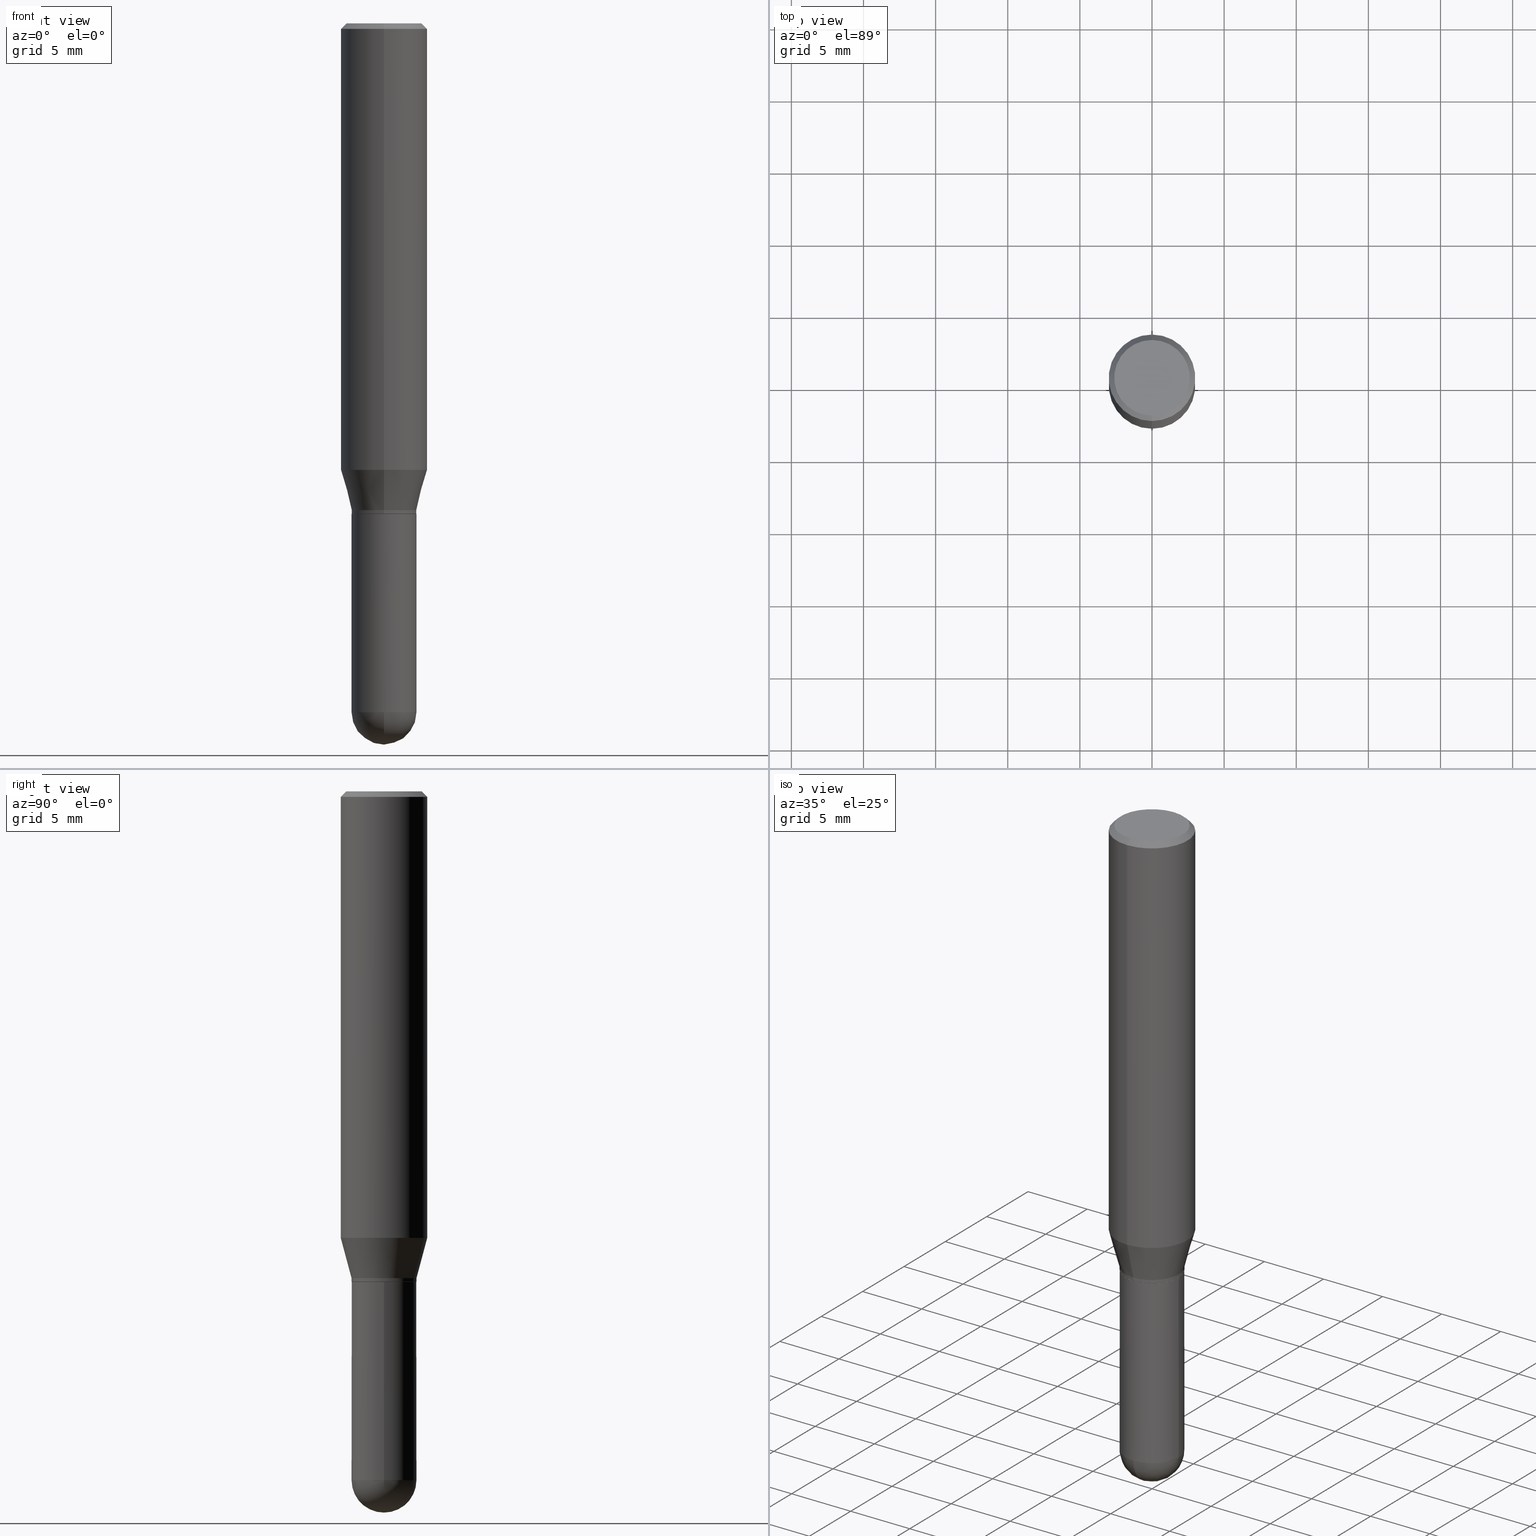
[diagram: canonical four-view strip — front | top / right | iso, engineering-drawing reading convention]
A machine part, canonical four-view strip (front | top / right | iso — engineering-drawing reading convention). The complete STEP part file that produces these views, byte-faithful:
ISO-10303-21;
HEADER;
FILE_DESCRIPTION (( 'STEP AP203' ),
    '1' );
FILE_NAME ('48614.STEP',
    '2024-03-08T13:10:58',
    ( '' ),
    ( '' ),
    'SwSTEP 2.0',
    'SolidWorks 2023',
    '' );
FILE_SCHEMA (( 'CONFIG_CONTROL_DESIGN' ));
ENDSEC;

DATA;
#1 = ADVANCED_FACE ( 'NONE', ( #321 ), #201, .F. ) ;
#2 = CARTESIAN_POINT ( 'NONE',  ( 6.277645070440807445E-16, 0.08809999999999532094, -1.338600000000000234 ) ) ;
#3 = CIRCLE ( 'NONE', #434, 0.08859999999999991493 ) ;
#4 = ORIENTED_EDGE ( 'NONE', *, *, #268, .F. ) ;
#5 = DIRECTION ( 'NONE',  ( -2.445312692479667883E-29, 3.491704902554816982E-15, 1.000000000000000000 ) ) ;
#6 = ORIENTED_EDGE ( 'NONE', *, *, #196, .T. ) ;
#7 = ORIENTED_EDGE ( 'NONE', *, *, #63, .T. ) ;
#8 = CARTESIAN_POINT ( 'NONE',  ( 8.391509709327082724E-16, 0.1180999999999999411, -0.01500000000000055456 ) ) ;
#9 = VERTEX_POINT ( 'NONE', #41 ) ;
#10 = DIRECTION ( 'NONE',  ( -4.851104656540965064E-15, -0.7071067811865501263, -0.7071067811865449082 ) ) ;
#11 = AXIS2_PLACEMENT_3D ( 'NONE', #284, #84, #128 ) ;
#12 = CARTESIAN_POINT ( 'NONE',  ( 2.979624522571035712E-29, -4.254658140543858788E-15, -1.218504501176718158 ) ) ;
#13 = DIRECTION ( 'NONE',  ( -2.445312692479667883E-29, 3.491704902554816982E-15, 1.000000000000000000 ) ) ;
#14 = ADVANCED_FACE ( 'NONE', ( #78 ), #402, .T. ) ;
#15 = DIRECTION ( 'NONE',  ( 1.000000000000000000, -6.982962677686270655E-15, 0.000000000000000000 ) ) ;
#16 = ORIENTED_EDGE ( 'NONE', *, *, #466, .T. ) ;
#17 = VECTOR ( 'NONE', #215, 39.37007874015747433 ) ;
#18 = APPROVAL_PERSON_ORGANIZATION ( #427, #241, #375 ) ;
#19 = MECHANICAL_CONTEXT ( 'NONE', #440, 'mechanical' ) ;
#20 = DIRECTION ( 'NONE',  ( -2.445468806185136597E-29, 3.491481338843145583E-15, 1.000000000000000000 ) ) ;
#21 = ADVANCED_FACE ( 'NONE', ( #119 ), #158, .T. ) ;
#22 = DIRECTION ( 'NONE',  ( -6.982962677686264344E-15, -1.000000000000000000, 3.083349879982241481E-15 ) ) ;
#23 = ORIENTED_EDGE ( 'NONE', *, *, #63, .F. ) ;
#24 = CARTESIAN_POINT ( 'NONE',  ( 3.667969038719537049E-31, -5.237557353832276132E-17, -0.01500000000000014343 ) ) ;
#25 = CALENDAR_DATE ( 2024, 8, 3 ) ;
#26 = CIRCLE ( 'NONE', #11, 0.1030999999999999833 ) ;
#27 = DIRECTION ( 'NONE',  ( -6.982962677686265133E-15, -1.000000000000000000, 3.100849027995758518E-15 ) ) ;
#28 = APPROVAL_STATUS ( 'not_yet_approved' ) ;
#29 = EDGE_LOOP ( 'NONE', ( #132, #7, #329, #457 ) ) ;
#30 = DIRECTION ( 'NONE',  ( -7.105427357600999492E-15, -1.000000000000000000, 0.000000000000000000 ) ) ;
#31 = PERSON_AND_ORGANIZATION ( #195, #361 ) ;
#32 = EDGE_CURVE ( 'NONE', #175, #335, #356, .T. ) ;
#33 = DIRECTION ( 'NONE',  ( 6.982962677686265133E-15, 1.000000000000000000, -3.083349879982239114E-15 ) ) ;
#34 = AXIS2_PLACEMENT_3D ( 'NONE', #115, #271, #40 ) ;
#35 = AXIS2_PLACEMENT_3D ( 'NONE', #326, #54, #365 ) ;
#36 = CARTESIAN_POINT ( 'NONE',  ( 6.186904932430488054E-16, 0.08859999999999342013, -1.879900000000000126 ) ) ;
#37 = PRODUCT_DEFINITION ( 'UNKNOWN', '', #289, #378 ) ;
#38 = DIRECTION ( 'NONE',  ( -2.445312692479667883E-29, 3.491704902554816982E-15, 1.000000000000000000 ) ) ;
#39 = EDGE_LOOP ( 'NONE', ( #315, #364, #319, #23 ) ) ;
#40 = DIRECTION ( 'NONE',  ( -6.982962677686265922E-15, -1.000000000000000000, 3.469747663417777397E-15 ) ) ;
#41 = CARTESIAN_POINT ( 'NONE',  ( 6.295408638834805036E-16, 0.08859999999999519649, -1.338100000000000511 ) ) ;
#42 = CIRCLE ( 'NONE', #239, 0.08859999999999998432 ) ;
#43 = VERTEX_POINT ( 'NONE', #2 ) ;
#44 = DIRECTION ( 'NONE',  ( -6.982962677686264344E-15, -1.000000000000000000, 3.083349879982241481E-15 ) ) ;
#45 = ADVANCED_FACE ( 'NONE', ( #318 ), #217, .T. ) ;
#46 = CARTESIAN_POINT ( 'NONE',  ( 4.597236808747438107E-29, -6.563635768891228653E-15, -1.879899999999999904 ) ) ;
#47 = FACE_OUTER_BOUND ( 'NONE', #277, .T. ) ;
#48 = CC_DESIGN_APPROVAL ( #168, ( #37 ) ) ;
#49 = EDGE_CURVE ( 'NONE', #507, #98, #156, .T. ) ;
#50 = LINE ( 'NONE', #325, #314 ) ;
#51 = ORIENTED_EDGE ( 'NONE', *, *, #412, .T. ) ;
#52 = DIRECTION ( 'NONE',  ( -4.937700262164631661E-15, -0.7071067811865571207, 0.7071067811865379138 ) ) ;
#53 = EDGE_LOOP ( 'NONE', ( #353, #116 ) ) ;
#54 = DIRECTION ( 'NONE',  ( -2.445312692479667883E-29, 3.491704902554816982E-15, 1.000000000000000000 ) ) ;
#55 = ORIENTED_EDGE ( 'NONE', *, *, #508, .F. ) ;
#56 = AXIS2_PLACEMENT_3D ( 'NONE', #282, #38, #442 ) ;
#57 = APPROVAL_ROLE ( '' ) ;
#58 = CARTESIAN_POINT ( 'NONE',  ( 3.272072913807044359E-29, -4.672250330108600985E-15, -1.338100000000000067 ) ) ;
#59 = APPROVAL_DATE_TIME ( #183, #294 ) ;
#60 = CARTESIAN_POINT ( 'NONE',  ( 8.246878922347483612E-16, 0.1180999999999999411, -0.01500000000000055456 ) ) ;
#61 = CARTESIAN_POINT ( 'NONE',  ( -7.587710785535310407E-16, -0.1030999999999999833, 2.171883166771725854E-16 ) ) ;
#62 = COORDINATED_UNIVERSAL_TIME_OFFSET ( 5, 0, .BEHIND. ) ;
#63 = EDGE_CURVE ( 'NONE', #452, #487, #443, .T. ) ;
#64 = MANIFOLD_SOLID_BREP ( 'Body-Move/Copy2[2]', #153 ) ;
#65 = DIRECTION ( 'NONE',  ( -2.445312692479667883E-29, 3.491704902554816982E-15, 1.000000000000000000 ) ) ;
#66 = VERTEX_POINT ( 'NONE', #432 ) ;
#67 = VECTOR ( 'NONE', #52, 39.37007874015748143 ) ;
#68 = CC_DESIGN_PERSON_AND_ORGANIZATION_ASSIGNMENT ( #31, #216, ( #289 ) ) ;
#69 = DIRECTION ( 'NONE',  ( -6.982962677686265922E-15, -1.000000000000000000, 3.491704902554816982E-15 ) ) ;
#70 = DATE_TIME_ROLE ( 'creation_date' ) ;
#71 = SPHERICAL_SURFACE ( 'NONE', #245, 0.08859999999999998432 ) ;
#72 = DIRECTION ( 'NONE',  ( -6.982962677686264344E-15, -1.000000000000000000, 3.083349879982241481E-15 ) ) ;
#73 = CC_DESIGN_DATE_AND_TIME_ASSIGNMENT ( #369, #106, ( #118 ) ) ;
#74 = CARTESIAN_POINT ( 'NONE',  ( 7.199434520694539070E-16, 0.1030999999999999833, -4.313980048415160526E-16 ) ) ;
#75 = APPROVAL_PERSON_ORGANIZATION ( #504, #294, #302 ) ;
#76 = ORIENTED_EDGE ( 'NONE', *, *, #343, .T. ) ;
#77 = DIRECTION ( 'NONE',  ( -2.445312692479667883E-29, 3.491704902554816982E-15, 1.000000000000000000 ) ) ;
#78 = FACE_OUTER_BOUND ( 'NONE', #391, .T. ) ;
#79 = ORIENTED_EDGE ( 'NONE', *, *, #111, .F. ) ;
#80 = ADVANCED_FACE ( 'NONE', ( #395 ), #308, .T. ) ;
#81 = CARTESIAN_POINT ( 'NONE',  ( 0.08859999999999998432, -6.186904932430030515E-16, 4.320292623355198064E-30 ) ) ;
#82 = CIRCLE ( 'NONE', #200, 0.08859999999999999820 ) ;
#83 = CARTESIAN_POINT ( 'NONE',  ( -6.151990119041272080E-16, -0.08810000000000467457, -1.338599999999999790 ) ) ;
#84 = DIRECTION ( 'NONE',  ( -2.445312692479667883E-29, 3.491704902554816982E-15, 1.000000000000000000 ) ) ;
#85 =( LENGTH_UNIT ( ) NAMED_UNIT ( * ) SI_UNIT ( $, .METRE. ) );
#86 = CARTESIAN_POINT ( 'NONE',  ( 0.000000000000000000, 0.000000000000000000, 0.000000000000000000 ) ) ;
#87 = AXIS2_PLACEMENT_3D ( 'NONE', #354, #470, #480 ) ;
#88 = ORIENTED_EDGE ( 'NONE', *, *, #347, .F. ) ;
#89 = AXIS2_PLACEMENT_3D ( 'NONE', #429, #224, #152 ) ;
#90 = CIRCLE ( 'NONE', #309, 0.08859999999999998432 ) ;
#91 = CARTESIAN_POINT ( 'NONE',  ( 4.597236808747438107E-29, -6.563635768891228653E-15, -1.879899999999999904 ) ) ;
#92 = ORIENTED_EDGE ( 'NONE', *, *, #390, .T. ) ;
#93 = DIRECTION ( 'NONE',  ( -6.982962677686264344E-15, -1.000000000000000000, 3.083349879982241481E-15 ) ) ;
#94 = ORIENTED_EDGE ( 'NONE', *, *, #114, .T. ) ;
#95 = CARTESIAN_POINT ( 'NONE',  ( -8.246878922347182859E-16, -0.1181000000000042710, -1.218504501176717714 ) ) ;
#96 = LENGTH_MEASURE_WITH_UNIT ( LENGTH_MEASURE( 0.02539999999999999897 ), #85 );
#97 = CARTESIAN_POINT ( 'NONE',  ( 0.08859999999999999820, -5.292387413418437689E-15, -1.338600000000000012 ) ) ;
#98 = VERTEX_POINT ( 'NONE', #234 ) ;
#99 = AXIS2_PLACEMENT_3D ( 'NONE', #86, #244, #399 ) ;
#100 = CIRCLE ( 'NONE', #192, 0.08859999999999991493 ) ;
#101 = DIRECTION ( 'NONE',  ( -1.000000000000000000, 7.105427357601001070E-15, -4.926315508542082329E-29 ) ) ;
#102 = FACE_OUTER_BOUND ( 'NONE', #413, .T. ) ;
#103 = CALENDAR_DATE ( 2024, 8, 3 ) ;
#104 = EDGE_CURVE ( 'NONE', #487, #439, #473, .T. ) ;
#105 = CARTESIAN_POINT ( 'NONE',  ( 8.391509709326781971E-16, 0.1180999999999999966, -4.123703489917239120E-16 ) ) ;
#106 = DATE_TIME_ROLE ( 'classification_date' ) ;
#107 = EDGE_LOOP ( 'NONE', ( #88, #220, #441, #55 ) ) ;
#108 = AXIS2_PLACEMENT_3D ( 'NONE', #58, #459, #22 ) ;
#109 = DIRECTION ( 'NONE',  ( -2.445312692479667883E-29, 3.491704902554816982E-15, 1.000000000000000000 ) ) ;
#110 = PERSON_AND_ORGANIZATION ( #195, #361 ) ;
#111 = EDGE_CURVE ( 'NONE', #312, #43, #384, .T. ) ;
#112 = ORIENTED_EDGE ( 'NONE', *, *, #379, .T. ) ;
#113 = DIRECTION ( 'NONE',  ( 6.982962677686265133E-15, 1.000000000000000000, 0.000000000000000000 ) ) ;
#114 = EDGE_CURVE ( 'NONE', #98, #66, #3, .T. ) ;
#115 = CARTESIAN_POINT ( 'NONE',  ( 2.979624522571035712E-29, -4.254658140543858788E-15, -1.218504501176718158 ) ) ;
#116 = ORIENTED_EDGE ( 'NONE', *, *, #347, .T. ) ;
#117 = CIRCLE ( 'NONE', #186, 0.08809999999999999776 ) ;
#118 = SECURITY_CLASSIFICATION ( '', '', #464 ) ;
#119 = FACE_OUTER_BOUND ( 'NONE', #189, .T. ) ;
#120 = CC_DESIGN_PERSON_AND_ORGANIZATION_ASSIGNMENT ( #456, #345, ( #289 ) ) ;
#121 = ORIENTED_EDGE ( 'NONE', *, *, #407, .F. ) ;
#122 = DIRECTION ( 'NONE',  ( 2.445312692479667602E-29, -3.491704902554816982E-15, -1.000000000000000000 ) ) ;
#123 = DIRECTION ( 'NONE',  ( -6.982962677686265133E-15, -1.000000000000000000, 3.100849027995758518E-15 ) ) ;
#124 = VERTEX_POINT ( 'NONE', #8 ) ;
#125 = AXIS2_PLACEMENT_3D ( 'NONE', #300, #141, #496 ) ;
#126 = CYLINDRICAL_SURFACE ( 'NONE', #170, 0.08859999999999998432 ) ;
#127 = EDGE_CURVE ( 'NONE', #43, #9, #446, .T. ) ;
#128 = DIRECTION ( 'NONE',  ( -6.982962677686265922E-15, -1.000000000000000000, 3.491704902554816587E-15 ) ) ;
#129 = ORIENTED_EDGE ( 'NONE', *, *, #151, .F. ) ;
#130 = CARTESIAN_POINT ( 'NONE',  ( 4.597236808747438107E-29, -6.563635768891228653E-15, -1.879899999999999904 ) ) ;
#131 = VECTOR ( 'NONE', #389, 39.37007874015748143 ) ;
#132 = ORIENTED_EDGE ( 'NONE', *, *, #394, .F. ) ;
#133 = LOCAL_TIME ( 8, 10, 58.00000000000000000, #149 ) ;
#134 = CYLINDRICAL_SURFACE ( 'NONE', #35, 0.08859999999999991493 ) ;
#135 = VERTEX_POINT ( 'NONE', #36 ) ;
#136 = APPROVAL_STATUS ( 'not_yet_approved' ) ;
#137 = EDGE_CURVE ( 'NONE', #66, #452, #193, .T. ) ;
#138 = CARTESIAN_POINT ( 'NONE',  ( 3.248842443228486773E-29, -4.639079133534330158E-15, -1.328600000000000225 ) ) ;
#139 = CALENDAR_DATE ( 2024, 8, 3 ) ;
#140 = EDGE_LOOP ( 'NONE', ( #166, #51, #491, #4 ) ) ;
#141 = DIRECTION ( 'NONE',  ( -2.445312692479667883E-29, 3.491704902554816982E-15, 1.000000000000000000 ) ) ;
#142 = CARTESIAN_POINT ( 'NONE',  ( 3.273504543959423913E-29, -4.673696920175434737E-15, -1.338600000000000012 ) ) ;
#143 = AXIS2_PLACEMENT_3D ( 'NONE', #138, #453, #93 ) ;
#144 = CARTESIAN_POINT ( 'NONE',  ( -6.186904932429700179E-16, -0.08860000000000461950, -1.338099999999999845 ) ) ;
#145 = LOCAL_TIME ( 8, 10, 58.00000000000000000, #339 ) ;
#146 = DIRECTION ( 'NONE',  ( 1.000000000000000000, -6.982962677686265922E-15, 4.876176775795935232E-29 ) ) ;
#147 = CC_DESIGN_PERSON_AND_ORGANIZATION_ASSIGNMENT ( #425, #494, ( #118 ) ) ;
#148 = CARTESIAN_POINT ( 'NONE',  ( 4.589660035425309027E-29, -6.574486139531674551E-15, -1.879900000000000126 ) ) ;
#149 = COORDINATED_UNIVERSAL_TIME_OFFSET ( 5, 0, .BEHIND. ) ;
#150 = ORIENTED_EDGE ( 'NONE', *, *, #333, .T. ) ;
#151 = EDGE_CURVE ( 'NONE', #303, #322, #444, .T. ) ;
#152 = DIRECTION ( 'NONE',  ( 6.982962677686265133E-15, 1.000000000000000000, -3.083349879982239114E-15 ) ) ;
#153 = CLOSED_SHELL ( 'NONE', ( #511, #21, #45, #436, #316, #203, #305, #14, #1, #423, #80, #236 ) ) ;
#154 = VECTOR ( 'NONE', #77, 39.37007874015748143 ) ;
#155 = FACE_OUTER_BOUND ( 'NONE', #320, .T. ) ;
#156 = LINE ( 'NONE', #279, #381 ) ;
#157 = DIRECTION ( 'NONE',  ( -6.982962677686265133E-15, -1.000000000000000000, 3.100849027995758518E-15 ) ) ;
#158 = CONICAL_SURFACE ( 'NONE', #286, 0.08809999999999999776, 0.7853981633974653764 ) ;
#159 = CIRCLE ( 'NONE', #225, 0.1180999999999999966 ) ;
#160 = CIRCLE ( 'NONE', #383, 0.08859999999999998432 ) ;
#161 = LOCAL_TIME ( 8, 10, 58.00000000000000000, #62 ) ;
#162 = EDGE_CURVE ( 'NONE', #322, #175, #42, .T. ) ;
#163 = ORIENTED_EDGE ( 'NONE', *, *, #273, .F. ) ;
#164 = DIRECTION ( 'NONE',  ( 6.982962677686265922E-15, 1.000000000000000000, -3.491704902554816982E-15 ) ) ;
#165 = PRODUCT_DEFINITION_SHAPE ( 'NONE', 'NONE',  #37 ) ;
#166 = ORIENTED_EDGE ( 'NONE', *, *, #343, .F. ) ;
#167 = ORIENTED_EDGE ( 'NONE', *, *, #137, .T. ) ;
#168 = APPROVAL ( #136, 'UNSPECIFIED' ) ;
#169 = CARTESIAN_POINT ( 'NONE',  ( -6.295408638834025049E-16, -0.08860000000000653464, -1.879899999999999460 ) ) ;
#170 = AXIS2_PLACEMENT_3D ( 'NONE', #328, #448, #243 ) ;
#171 = CARTESIAN_POINT ( 'NONE',  ( -6.186904932429700179E-16, -0.08860000000000455012, -1.328599999999999781 ) ) ;
#172 = CARTESIAN_POINT ( 'NONE',  ( 3.248842443228486773E-29, -4.639079133534330158E-15, -1.328600000000000225 ) ) ;
#173 = VERTEX_POINT ( 'NONE', #401 ) ;
#174 = DIRECTION ( 'NONE',  ( 1.000000000000000000, -6.982962677686270655E-15, 0.000000000000000000 ) ) ;
#175 = VERTEX_POINT ( 'NONE', #405 ) ;
#176 = EDGE_CURVE ( 'NONE', #98, #487, #408, .T. ) ;
#177 = PERSON_AND_ORGANIZATION_ROLE ( 'design_owner' ) ;
#178 = DIRECTION ( 'NONE',  ( -2.445468806185136597E-29, 3.491481338843145583E-15, 1.000000000000000000 ) ) ;
#179 = ORIENTED_EDGE ( 'NONE', *, *, #466, .F. ) ;
#180 = LINE ( 'NONE', #60, #385 ) ;
#181 = APPLICATION_PROTOCOL_DEFINITION ( 'international standard', 'config_control_design', 1994, #304 ) ;
#182 = DIRECTION ( 'NONE',  ( -2.445312692479667602E-29, 3.491704902554816982E-15, 1.000000000000000000 ) ) ;
#183 = DATE_AND_TIME ( #25, #133 ) ;
#184 = CARTESIAN_POINT ( 'NONE',  ( 3.273295570153283701E-29, -4.673996182559878604E-15, -1.338600000000000012 ) ) ;
#185 = APPROVAL_DATE_TIME ( #502, #168 ) ;
#186 = AXIS2_PLACEMENT_3D ( 'NONE', #219, #338, #27 ) ;
#187 = LINE ( 'NONE', #105, #199 ) ;
#188 = DATE_AND_TIME ( #139, #161 ) ;
#189 = EDGE_LOOP ( 'NONE', ( #476, #485, #179, #349 ) ) ;
#190 = LINE ( 'NONE', #230, #131 ) ;
#191 = ORIENTED_EDGE ( 'NONE', *, *, #390, .F. ) ;
#192 = AXIS2_PLACEMENT_3D ( 'NONE', #469, #270, #72 ) ;
#193 = LINE ( 'NONE', #362, #17 ) ;
#194 = CARTESIAN_POINT ( 'NONE',  ( 6.259881502046808869E-16, 0.08809999999999532094, -1.338600000000000234 ) ) ;
#195 = PERSON ( 'UNSPECIFIED', 'UNSPECIFIED', 'UNSPECIFIED', ('UNSPECIFIED'), ('UNSPECIFIED'), ('UNSPECIFIED') ) ;
#196 = EDGE_CURVE ( 'NONE', #312, #507, #411, .T. ) ;
#197 = DIRECTION ( 'NONE',  ( -2.445312692479667883E-29, 3.491704902554816982E-15, 1.000000000000000000 ) ) ;
#198 = EDGE_LOOP ( 'NONE', ( #393, #357, #366, #202 ) ) ;
#199 = VECTOR ( 'NONE', #109, 39.37007874015748143 ) ;
#200 = AXIS2_PLACEMENT_3D ( 'NONE', #142, #261, #422 ) ;
#201 = PLANE ( 'NONE',  #205 ) ;
#202 = ORIENTED_EDGE ( 'NONE', *, *, #162, .F. ) ;
#203 = ADVANCED_FACE ( 'NONE', ( #208 ), #233, .T. ) ;
#204 = CARTESIAN_POINT ( 'NONE',  ( -6.151990119041272080E-16, -0.08810000000000467457, -1.338599999999999790 ) ) ;
#205 = AXIS2_PLACEMENT_3D ( 'NONE', #74, #122, #164 ) ;
#206 = DIRECTION ( 'NONE',  ( -2.445312692479667883E-29, 3.491704902554816982E-15, 1.000000000000000000 ) ) ;
#207 =( GEOMETRIC_REPRESENTATION_CONTEXT ( 3 ) GLOBAL_UNCERTAINTY_ASSIGNED_CONTEXT ( ( #472 ) ) GLOBAL_UNIT_ASSIGNED_CONTEXT ( ( #410, #373, #222 ) ) REPRESENTATION_CONTEXT ( 'NONE', 'WORKASPACE' ) );
#208 = FACE_OUTER_BOUND ( 'NONE', #39, .T. ) ;
#209 = VERTEX_POINT ( 'NONE', #210 ) ;
#210 = CARTESIAN_POINT ( 'NONE',  ( 7.723156721521010848E-16, 0.1030999999999999833, -5.028012342296305664E-16 ) ) ;
#211 = CC_DESIGN_PERSON_AND_ORGANIZATION_ASSIGNMENT ( #367, #177, ( #396 ) ) ;
#212 = ORIENTED_EDGE ( 'NONE', *, *, #447, .T. ) ;
#213 = DIRECTION ( 'NONE',  ( 1.000000000000000000, -6.982962677686270655E-15, 0.000000000000000000 ) ) ;
#214 = DIRECTION ( 'NONE',  ( 1.000000000000000000, 0.000000000000000000, 0.000000000000000000 ) ) ;
#215 = DIRECTION ( 'NONE',  ( 1.839019923739599526E-15, 0.2588190451025248473, 0.9659258262890673130 ) ) ;
#216 = PERSON_AND_ORGANIZATION_ROLE ( 'creator' ) ;
#217 = CONICAL_SURFACE ( 'NONE', #481, 0.1180999999999999966, 0.7853981633974485010 ) ;
#218 = AXIS2_PLACEMENT_3D ( 'NONE', #368, #484, #331 ) ;
#219 = CARTESIAN_POINT ( 'NONE',  ( 3.273295570153283701E-29, -4.673996182559878604E-15, -1.338600000000000012 ) ) ;
#220 = ORIENTED_EDGE ( 'NONE', *, *, #278, .T. ) ;
#221 = EDGE_CURVE ( 'NONE', #487, #452, #482, .T. ) ;
#222 =( NAMED_UNIT ( * ) SI_UNIT ( $, .STERADIAN. ) SOLID_ANGLE_UNIT ( ) );
#223 = CYLINDRICAL_SURFACE ( 'NONE', #435, 0.08859999999999998432 ) ;
#224 = DIRECTION ( 'NONE',  ( -1.000000000000000000, 6.982962677686265133E-15, -4.883557194083112340E-29 ) ) ;
#225 = AXIS2_PLACEMENT_3D ( 'NONE', #24, #417, #463 ) ;
#226 = AXIS2_PLACEMENT_3D ( 'NONE', #421, #291, #214 ) ;
#227 = DIRECTION ( 'NONE',  ( -2.445468806185136597E-29, 3.491481338843145583E-15, 1.000000000000000000 ) ) ;
#228 = DATE_AND_TIME ( #103, #404 ) ;
#229 = EDGE_LOOP ( 'NONE', ( #94, #167, #293, #371 ) ) ;
#230 = CARTESIAN_POINT ( 'NONE',  ( -0.08859999999999998432, 6.295408638834486533E-16, -4.358176489965845566E-30 ) ) ;
#231 = CC_DESIGN_PERSON_AND_ORGANIZATION_ASSIGNMENT ( #110, #387, ( #37 ) ) ;
#232 = DIRECTION ( 'NONE',  ( 5.024295867788147587E-15, 0.7071067811865620056, 0.7071067811865330288 ) ) ;
#233 = CONICAL_SURFACE ( 'NONE', #218, 0.08859999999999991493, 0.2617993877991501295 ) ;
#234 = CARTESIAN_POINT ( 'NONE',  ( -6.186904932429700179E-16, -0.08860000000000455012, -1.328599999999999781 ) ) ;
#235 = MANIFOLD_SOLID_BREP ( 'Body-Move/Copy2[1]', #415 ) ;
#236 = ADVANCED_FACE ( 'NONE', ( #451 ), #134, .T. ) ;
#237 = CARTESIAN_POINT ( 'NONE',  ( 3.667969038719537049E-31, -5.237557353832276132E-17, -0.01500000000000014343 ) ) ;
#238 = ORIENTED_EDGE ( 'NONE', *, *, #49, .F. ) ;
#239 = AXIS2_PLACEMENT_3D ( 'NONE', #46, #249, #174 ) ;
#240 = CARTESIAN_POINT ( 'NONE',  ( 3.248842443228486773E-29, -4.639079133534330158E-15, -1.328600000000000225 ) ) ;
#241 = APPROVAL ( #462, 'UNSPECIFIED' ) ;
#242 = FACE_OUTER_BOUND ( 'NONE', #29, .T. ) ;
#243 = DIRECTION ( 'NONE',  ( 1.000000000000000000, -6.982962677686265922E-15, 4.876176775795935232E-29 ) ) ;
#244 = DIRECTION ( 'NONE',  ( -2.445312692479667883E-29, 3.491704902554816982E-15, 1.000000000000000000 ) ) ;
#245 = AXIS2_PLACEMENT_3D ( 'NONE', #269, #374, #33 ) ;
#246 = AXIS2_PLACEMENT_3D ( 'NONE', #251, #499, #213 ) ;
#247 = ORIENTED_EDGE ( 'NONE', *, *, #104, .F. ) ;
#248 = EDGE_CURVE ( 'NONE', #175, #135, #287, .T. ) ;
#249 = DIRECTION ( 'NONE',  ( -2.445468806185136597E-29, 3.491481338843145583E-15, 1.000000000000000000 ) ) ;
#250 = ORIENTED_EDGE ( 'NONE', *, *, #127, .F. ) ;
#251 = CARTESIAN_POINT ( 'NONE',  ( 4.597236808747438107E-29, -6.563635768891228653E-15, -1.879899999999999904 ) ) ;
#252 = APPLICATION_PROTOCOL_DEFINITION ( 'international standard', 'config_control_design', 1994, #440 ) ;
#253 = CARTESIAN_POINT ( 'NONE',  ( 4.810116958314376734E-29, -6.878406200832954656E-15, -1.968500000000000139 ) ) ;
#254 = EDGE_LOOP ( 'NONE', ( #332, #92, #285, #495, #307 ) ) ;
#255 = FACE_OUTER_BOUND ( 'NONE', #450, .T. ) ;
#256 = CARTESIAN_POINT ( 'NONE',  ( 6.295408638834479630E-16, 0.08859999999999991493, -3.093650543663564896E-16 ) ) ;
#257 = AXIS2_PLACEMENT_3D ( 'NONE', #12, #206, #288 ) ;
#258 = EDGE_CURVE ( 'NONE', #173, #335, #458, .T. ) ;
#259 = ORIENTED_EDGE ( 'NONE', *, *, #488, .F. ) ;
#260 = CC_DESIGN_APPROVAL ( #294, ( #289 ) ) ;
#261 = DIRECTION ( 'NONE',  ( -2.445468806185136597E-29, 3.491481338843145583E-15, 1.000000000000000000 ) ) ;
#262 = SHAPE_DEFINITION_REPRESENTATION ( #165, #430 ) ;
#263 = CARTESIAN_POINT ( 'NONE',  ( 8.391509709327078780E-16, 0.1180999999999957362, -1.218504501176718602 ) ) ;
#264 = CARTESIAN_POINT ( 'NONE',  ( 3.667969038719537049E-31, -5.237557353832276132E-17, -0.01500000000000014343 ) ) ;
#265 = COORDINATED_UNIVERSAL_TIME_OFFSET ( 5, 0, .BEHIND. ) ;
#266 = ORIENTED_EDGE ( 'NONE', *, *, #221, .T. ) ;
#267 = AXIS2_PLACEMENT_3D ( 'NONE', #264, #426, #424 ) ;
#268 = EDGE_CURVE ( 'NONE', #66, #98, #281, .T. ) ;
#269 = CARTESIAN_POINT ( 'NONE',  ( 4.589660035425309027E-29, -6.574486139531674551E-15, -1.879900000000000126 ) ) ;
#270 = DIRECTION ( 'NONE',  ( -2.445312692479667883E-29, 3.491704902554816982E-15, 1.000000000000000000 ) ) ;
#271 = DIRECTION ( 'NONE',  ( -2.445312692479667883E-29, 3.491704902554816982E-15, 1.000000000000000000 ) ) ;
#272 = ORIENTED_EDGE ( 'NONE', *, *, #32, .T. ) ;
#273 = EDGE_CURVE ( 'NONE', #209, #465, #26, .T. ) ;
#274 = VECTOR ( 'NONE', #232, 39.37007874015748143 ) ;
#275 = DIRECTION ( 'NONE',  ( 2.445312692479667883E-29, -3.491704902554816982E-15, -1.000000000000000000 ) ) ;
#276 = ORIENTED_EDGE ( 'NONE', *, *, #508, .T. ) ;
#277 = EDGE_LOOP ( 'NONE', ( #212, #355 ) ) ;
#278 = EDGE_CURVE ( 'NONE', #465, #439, #50, .T. ) ;
#279 = CARTESIAN_POINT ( 'NONE',  ( -6.186904932430024598E-16, -0.08859999999999991493, 3.093650543663564896E-16 ) ) ;
#280 = VECTOR ( 'NONE', #311, 39.37007874015748143 ) ;
#281 = CIRCLE ( 'NONE', #143, 0.08859999999999991493 ) ;
#282 = CARTESIAN_POINT ( 'NONE',  ( 3.273295570153283701E-29, -4.673996182559878604E-15, -1.338600000000000012 ) ) ;
#283 = FACE_OUTER_BOUND ( 'NONE', #229, .T. ) ;
#284 = CARTESIAN_POINT ( 'NONE',  ( 3.492064462135871408E-45, -4.986380122254510664E-31, -1.428064587762289781E-16 ) ) ;
#285 = ORIENTED_EDGE ( 'NONE', *, *, #447, .F. ) ;
#286 = AXIS2_PLACEMENT_3D ( 'NONE', #313, #5, #157 ) ;
#287 = CIRCLE ( 'NONE', #416, 0.08859999999999998432 ) ;
#288 = DIRECTION ( 'NONE',  ( -6.982962677686265922E-15, -1.000000000000000000, 3.469747663417777397E-15 ) ) ;
#289 = PRODUCT_DEFINITION_FORMATION_WITH_SPECIFIED_SOURCE ( 'ANY', '', #396, .NOT_KNOWN. ) ;
#290 = ORIENTED_EDGE ( 'NONE', *, *, #151, .T. ) ;
#291 = DIRECTION ( 'NONE',  ( 0.000000000000000000, 0.000000000000000000, 1.000000000000000000 ) ) ;
#292 = DIRECTION ( 'NONE',  ( 1.000000000000000000, -6.982962677686269077E-15, 0.000000000000000000 ) ) ;
#293 = ORIENTED_EDGE ( 'NONE', *, *, #221, .F. ) ;
#294 = APPROVAL ( #28, 'UNSPECIFIED' ) ;
#295 = CARTESIAN_POINT ( 'NONE',  ( -0.08859999999999998432, -4.989125480649882450E-15, -1.879899999999999904 ) ) ;
#296 = VERTEX_POINT ( 'NONE', #253 ) ;
#297 = DIRECTION ( 'NONE',  ( -1.000000000000000000, 6.982962677686265922E-15, -4.876176775795935793E-29 ) ) ;
#298 = VECTOR ( 'NONE', #334, 39.37007874015749564 ) ;
#299 = AXIS2_PLACEMENT_3D ( 'NONE', #184, #182, #69 ) ;
#300 = CARTESIAN_POINT ( 'NONE',  ( 0.000000000000000000, 0.000000000000000000, 0.000000000000000000 ) ) ;
#301 = CYLINDRICAL_SURFACE ( 'NONE', #323, 0.1180999999999999966 ) ;
#302 = APPROVAL_ROLE ( '' ) ;
#303 = VERTEX_POINT ( 'NONE', #295 ) ;
#304 = APPLICATION_CONTEXT ( 'configuration controlled 3d designs of mechanical parts and assemblies' ) ;
#305 = ADVANCED_FACE ( 'NONE', ( #242 ), #363, .T. ) ;
#306 = CARTESIAN_POINT ( 'NONE',  ( 3.492064462135871408E-45, -4.986380122254510664E-31, -1.428064587762289781E-16 ) ) ;
#307 = ORIENTED_EDGE ( 'NONE', *, *, #248, .T. ) ;
#308 = CONICAL_SURFACE ( 'NONE', #403, 0.08809999999999999776, 0.7853981633974653764 ) ;
#309 = AXIS2_PLACEMENT_3D ( 'NONE', #431, #310, #113 ) ;
#310 = DIRECTION ( 'NONE',  ( 1.000000000000000000, -6.982962677686265922E-15, 4.883557194083112340E-29 ) ) ;
#311 = DIRECTION ( 'NONE',  ( -2.445468806185136877E-29, 3.491481338843145188E-15, 1.000000000000000000 ) ) ;
#312 = VERTEX_POINT ( 'NONE', #204 ) ;
#313 = CARTESIAN_POINT ( 'NONE',  ( 3.273295570153283701E-29, -4.673996182559878604E-15, -1.338600000000000012 ) ) ;
#314 = VECTOR ( 'NONE', #10, 39.37007874015748143 ) ;
#315 = ORIENTED_EDGE ( 'NONE', *, *, #137, .F. ) ;
#316 = ADVANCED_FACE ( 'NONE', ( #283 ), #340, .T. ) ;
#317 = ORIENTED_EDGE ( 'NONE', *, *, #162, .T. ) ;
#318 = FACE_OUTER_BOUND ( 'NONE', #107, .T. ) ;
#319 = ORIENTED_EDGE ( 'NONE', *, *, #176, .T. ) ;
#320 = EDGE_LOOP ( 'NONE', ( #79, #471 ) ) ;
#321 = FACE_OUTER_BOUND ( 'NONE', #53, .T. ) ;
#322 = VERTEX_POINT ( 'NONE', #169 ) ;
#323 = AXIS2_PLACEMENT_3D ( 'NONE', #505, #461, #337 ) ;
#324 = ADVANCED_FACE ( 'NONE', ( #483 ), #126, .T. ) ;
#325 = CARTESIAN_POINT ( 'NONE',  ( -8.102248135368174406E-16, -0.1181000000000000522, -0.01499999999999973056 ) ) ;
#326 = CARTESIAN_POINT ( 'NONE',  ( 0.000000000000000000, 0.000000000000000000, 0.000000000000000000 ) ) ;
#327 = ADVANCED_FACE ( 'NONE', ( #47 ), #486, .F. ) ;
#328 = CARTESIAN_POINT ( 'NONE',  ( 0.000000000000000000, 0.000000000000000000, 0.000000000000000000 ) ) ;
#329 = ORIENTED_EDGE ( 'NONE', *, *, #104, .T. ) ;
#330 = CIRCLE ( 'NONE', #108, 0.08859999999999991493 ) ;
#331 = DIRECTION ( 'NONE',  ( -6.982962677686264344E-15, -1.000000000000000000, 3.083349879982241481E-15 ) ) ;
#332 = ORIENTED_EDGE ( 'NONE', *, *, #488, .T. ) ;
#333 = EDGE_CURVE ( 'NONE', #43, #312, #117, .T. ) ;
#334 = DIRECTION ( 'NONE',  ( -1.807323732225328562E-15, -0.2588190451025179639, 0.9659258262890689783 ) ) ;
#335 = VERTEX_POINT ( 'NONE', #97 ) ;
#336 = DIRECTION ( 'NONE',  ( 4.937700262164548831E-15, 0.7071067811865452413, -0.7071067811865497932 ) ) ;
#337 = DIRECTION ( 'NONE',  ( -6.982962677686265922E-15, -1.000000000000000000, 3.491704902554817376E-15 ) ) ;
#338 = DIRECTION ( 'NONE',  ( -2.445312692479667883E-29, 3.491704902554816982E-15, 1.000000000000000000 ) ) ;
#339 = COORDINATED_UNIVERSAL_TIME_OFFSET ( 5, 0, .BEHIND. ) ;
#340 = CONICAL_SURFACE ( 'NONE', #359, 0.08859999999999991493, 0.2617993877991501295 ) ;
#341 = APPROVAL_PERSON_ORGANIZATION ( #492, #168, #57 ) ;
#342 = DIRECTION ( 'NONE',  ( -2.445312692479667883E-29, 3.491704902554816982E-15, 1.000000000000000000 ) ) ;
#343 = EDGE_CURVE ( 'NONE', #9, #66, #503, .T. ) ;
#344 = FACE_OUTER_BOUND ( 'NONE', #376, .T. ) ;
#345 = PERSON_AND_ORGANIZATION_ROLE ( 'design_supplier' ) ;
#346 = EDGE_LOOP ( 'NONE', ( #250, #150, #6, #433 ) ) ;
#347 = EDGE_CURVE ( 'NONE', #465, #209, #352, .T. ) ;
#348 = FACE_OUTER_BOUND ( 'NONE', #254, .T. ) ;
#349 = ORIENTED_EDGE ( 'NONE', *, *, #196, .F. ) ;
#350 = ADVANCED_FACE ( 'NONE', ( #102 ), #71, .T. ) ;
#351 = CARTESIAN_POINT ( 'NONE',  ( -8.246878922347479668E-16, -0.1180999999999999966, 4.123703489917239120E-16 ) ) ;
#352 = CIRCLE ( 'NONE', #474, 0.1030999999999999833 ) ;
#353 = ORIENTED_EDGE ( 'NONE', *, *, #273, .T. ) ;
#354 = CARTESIAN_POINT ( 'NONE',  ( 3.667969038719537049E-31, -5.237557353832276132E-17, -0.01500000000000014343 ) ) ;
#355 = ORIENTED_EDGE ( 'NONE', *, *, #258, .T. ) ;
#356 = LINE ( 'NONE', #81, #280 ) ;
#357 = ORIENTED_EDGE ( 'NONE', *, *, #479, .T. ) ;
#358 = DIRECTION ( 'NONE',  ( -6.982962677686264344E-15, -1.000000000000000000, 3.083349879982241481E-15 ) ) ;
#359 = AXIS2_PLACEMENT_3D ( 'NONE', #172, #13, #358 ) ;
#360 = ADVANCED_FACE ( 'NONE', ( #380 ), #467, .T. ) ;
#361 = ORGANIZATION ( 'UNSPECIFIED', 'UNSPECIFIED', '' ) ;
#362 = CARTESIAN_POINT ( 'NONE',  ( 6.295408638834805036E-16, 0.08859999999999526588, -1.328600000000000447 ) ) ;
#363 = CYLINDRICAL_SURFACE ( 'NONE', #99, 0.1180999999999999966 ) ;
#364 = ORIENTED_EDGE ( 'NONE', *, *, #268, .T. ) ;
#365 = DIRECTION ( 'NONE',  ( -6.982962677686264344E-15, -1.000000000000000000, 3.491704902554816982E-15 ) ) ;
#366 = ORIENTED_EDGE ( 'NONE', *, *, #248, .F. ) ;
#367 = PERSON_AND_ORGANIZATION ( #195, #361 ) ;
#368 = CARTESIAN_POINT ( 'NONE',  ( 3.248842443228486773E-29, -4.639079133534330158E-15, -1.328600000000000225 ) ) ;
#369 = DATE_AND_TIME ( #498, #145 ) ;
#370 = CIRCLE ( 'NONE', #246, 0.08859999999999998432 ) ;
#371 = ORIENTED_EDGE ( 'NONE', *, *, #176, .F. ) ;
#372 = EDGE_CURVE ( 'NONE', #296, #322, #160, .T. ) ;
#373 =( NAMED_UNIT ( * ) PLANE_ANGLE_UNIT ( ) SI_UNIT ( $, .RADIAN. ) );
#374 = DIRECTION ( 'NONE',  ( -1.000000000000000000, 6.982962677686265133E-15, -4.883557194083112340E-29 ) ) ;
#375 = APPROVAL_ROLE ( '' ) ;
#376 = EDGE_LOOP ( 'NONE', ( #266, #406, #121, #247 ) ) ;
#377 = PLANE ( 'NONE',  #299 ) ;
#378 = DESIGN_CONTEXT ( 'detailed design', #304, 'design' ) ;
#379 = EDGE_CURVE ( 'NONE', #124, #439, #159, .T. ) ;
#380 = FACE_OUTER_BOUND ( 'NONE', #198, .T. ) ;
#381 = VECTOR ( 'NONE', #438, 39.37007874015748143 ) ;
#382 = CALENDAR_DATE ( 2024, 8, 3 ) ;
#383 = AXIS2_PLACEMENT_3D ( 'NONE', #148, #101, #30 ) ;
#384 = CIRCLE ( 'NONE', #56, 0.08809999999999999776 ) ;
#385 = VECTOR ( 'NONE', #336, 39.37007874015748143 ) ;
#386 = CARTESIAN_POINT ( 'NONE',  ( 6.186904932430358878E-16, 0.08859999999999532139, -1.338600000000000234 ) ) ;
#387 = PERSON_AND_ORGANIZATION_ROLE ( 'creator' ) ;
#388 = ORIENTED_EDGE ( 'NONE', *, *, #114, .F. ) ;
#389 = DIRECTION ( 'NONE',  ( -2.445468806185136877E-29, 3.491481338843145188E-15, 1.000000000000000000 ) ) ;
#390 = EDGE_CURVE ( 'NONE', #303, #173, #190, .T. ) ;
#391 = EDGE_LOOP ( 'NONE', ( #409, #163, #276, #112 ) ) ;
#392 = AXIS2_PLACEMENT_3D ( 'NONE', #386, #455, #297 ) ;
#393 = ORIENTED_EDGE ( 'NONE', *, *, #372, .F. ) ;
#394 = EDGE_CURVE ( 'NONE', #452, #124, #187, .T. ) ;
#395 = FACE_OUTER_BOUND ( 'NONE', #346, .T. ) ;
#396 = PRODUCT ( '48614', '48614', '', ( #19 ) ) ;
#397 = ORIENTED_EDGE ( 'NONE', *, *, #479, .F. ) ;
#398 = DIRECTION ( 'NONE',  ( -2.445312692479667883E-29, 3.491704902554816982E-15, 1.000000000000000000 ) ) ;
#399 = DIRECTION ( 'NONE',  ( -6.982962677686265922E-15, -1.000000000000000000, 3.491704902554817376E-15 ) ) ;
#400 = CC_DESIGN_DATE_AND_TIME_ASSIGNMENT ( #188, #70, ( #37 ) ) ;
#401 = CARTESIAN_POINT ( 'NONE',  ( -0.08859999999999999820, -4.989125480649882450E-15, -1.338600000000000012 ) ) ;
#402 = CONICAL_SURFACE ( 'NONE', #87, 0.1180999999999999966, 0.7853981633974485010 ) ;
#403 = AXIS2_PLACEMENT_3D ( 'NONE', #477, #197, #123 ) ;
#404 = LOCAL_TIME ( 8, 10, 58.00000000000000000, #265 ) ;
#405 = CARTESIAN_POINT ( 'NONE',  ( 0.08859999999999998432, -6.237356837776335042E-15, -1.879899999999999904 ) ) ;
#406 = ORIENTED_EDGE ( 'NONE', *, *, #394, .T. ) ;
#407 = EDGE_CURVE ( 'NONE', #439, #124, #489, .T. ) ;
#408 = LINE ( 'NONE', #171, #298 ) ;
#409 = ORIENTED_EDGE ( 'NONE', *, *, #278, .F. ) ;
#410 =( CONVERSION_BASED_UNIT ( 'INCH', #96 ) LENGTH_UNIT ( ) NAMED_UNIT ( #437 ) );
#411 = LINE ( 'NONE', #83, #67 ) ;
#412 = EDGE_CURVE ( 'NONE', #9, #507, #330, .T. ) ;
#413 = EDGE_LOOP ( 'NONE', ( #397, #454, #129, #259 ) ) ;
#414 = CYLINDRICAL_SURFACE ( 'NONE', #125, 0.08859999999999991493 ) ;
#415 = CLOSED_SHELL ( 'NONE', ( #420, #350, #327, #360, #324 ) ) ;
#416 = AXIS2_PLACEMENT_3D ( 'NONE', #91, #449, #15 ) ;
#417 = DIRECTION ( 'NONE',  ( -2.445312692479667883E-29, 3.491704902554816982E-15, 1.000000000000000000 ) ) ;
#418 = CC_DESIGN_SECURITY_CLASSIFICATION ( #118, ( #289 ) ) ;
#419 = EDGE_LOOP ( 'NONE', ( #191, #290, #317, #272, #478 ) ) ;
#420 = ADVANCED_FACE ( 'NONE', ( #348 ), #223, .T. ) ;
#421 = CARTESIAN_POINT ( 'NONE',  ( 0.000000000000000000, 0.000000000000000000, 0.000000000000000000 ) ) ;
#422 = DIRECTION ( 'NONE',  ( 1.000000000000000000, -6.982962677686269077E-15, 0.000000000000000000 ) ) ;
#423 = ADVANCED_FACE ( 'NONE', ( #155 ), #377, .F. ) ;
#424 = DIRECTION ( 'NONE',  ( -6.982962677686265922E-15, -1.000000000000000000, 3.487819265831411744E-15 ) ) ;
#425 = PERSON_AND_ORGANIZATION ( #195, #361 ) ;
#426 = DIRECTION ( 'NONE',  ( -2.445312692479667883E-29, 3.491704902554816982E-15, 1.000000000000000000 ) ) ;
#427 = PERSON_AND_ORGANIZATION ( #195, #361 ) ;
#428 = VECTOR ( 'NONE', #342, 39.37007874015748143 ) ;
#429 = CARTESIAN_POINT ( 'NONE',  ( 4.589660035425309027E-29, -6.574486139531674551E-15, -1.879900000000000126 ) ) ;
#430 = ADVANCED_BREP_SHAPE_REPRESENTATION ( '48614', ( #235, #64, #226 ), #207 ) ;
#431 = CARTESIAN_POINT ( 'NONE',  ( 4.589660035425309027E-29, -6.574486139531674551E-15, -1.879900000000000126 ) ) ;
#432 = CARTESIAN_POINT ( 'NONE',  ( 7.343459174080941908E-16, 0.08859999999999526588, -1.328600000000000447 ) ) ;
#433 = ORIENTED_EDGE ( 'NONE', *, *, #412, .F. ) ;
#434 = AXIS2_PLACEMENT_3D ( 'NONE', #240, #398, #44 ) ;
#435 = AXIS2_PLACEMENT_3D ( 'NONE', #509, #227, #146 ) ;
#436 = ADVANCED_FACE ( 'NONE', ( #344 ), #301, .T. ) ;
#437 = DIMENSIONAL_EXPONENTS ( 1.000000000000000000, 0.000000000000000000, 0.000000000000000000, 0.000000000000000000, 0.000000000000000000, 0.000000000000000000, 0.000000000000000000 ) ;
#438 = DIRECTION ( 'NONE',  ( -2.445312692479667883E-29, 3.491704902554816982E-15, 1.000000000000000000 ) ) ;
#439 = VERTEX_POINT ( 'NONE', #497 ) ;
#440 = APPLICATION_CONTEXT ( 'configuration controlled 3d designs of mechanical parts and assemblies' ) ;
#441 = ORIENTED_EDGE ( 'NONE', *, *, #407, .T. ) ;
#442 = DIRECTION ( 'NONE',  ( -6.982962677686265133E-15, -1.000000000000000000, 3.100849027995758518E-15 ) ) ;
#443 = CIRCLE ( 'NONE', #34, 0.1180999999999999966 ) ;
#444 = CIRCLE ( 'NONE', #500, 0.08859999999999998432 ) ;
#445 = CC_DESIGN_APPROVAL ( #241, ( #118 ) ) ;
#446 = LINE ( 'NONE', #194, #274 ) ;
#447 = EDGE_CURVE ( 'NONE', #335, #173, #82, .T. ) ;
#448 = DIRECTION ( 'NONE',  ( -2.445468806185136597E-29, 3.491481338843145583E-15, 1.000000000000000000 ) ) ;
#449 = DIRECTION ( 'NONE',  ( -2.445468806185136597E-29, 3.491481338843145583E-15, 1.000000000000000000 ) ) ;
#450 = EDGE_LOOP ( 'NONE', ( #16, #76, #388, #238 ) ) ;
#451 = FACE_OUTER_BOUND ( 'NONE', #140, .T. ) ;
#452 = VERTEX_POINT ( 'NONE', #263 ) ;
#453 = DIRECTION ( 'NONE',  ( -2.445312692479667883E-29, 3.491704902554816982E-15, 1.000000000000000000 ) ) ;
#454 = ORIENTED_EDGE ( 'NONE', *, *, #372, .T. ) ;
#455 = DIRECTION ( 'NONE',  ( 2.438088387897960049E-29, -3.491481338843145188E-15, -1.000000000000000000 ) ) ;
#456 = PERSON_AND_ORGANIZATION ( #195, #361 ) ;
#457 = ORIENTED_EDGE ( 'NONE', *, *, #379, .F. ) ;
#458 = CIRCLE ( 'NONE', #510, 0.08859999999999999820 ) ;
#459 = DIRECTION ( 'NONE',  ( -2.445312692479667883E-29, 3.491704902554816982E-15, 1.000000000000000000 ) ) ;
#460 = COORDINATED_UNIVERSAL_TIME_OFFSET ( 5, 0, .BEHIND. ) ;
#461 = DIRECTION ( 'NONE',  ( -2.445312692479667883E-29, 3.491704902554816982E-15, 1.000000000000000000 ) ) ;
#462 = APPROVAL_STATUS ( 'not_yet_approved' ) ;
#463 = DIRECTION ( 'NONE',  ( -6.982962677686265922E-15, -1.000000000000000000, 3.487819265831411744E-15 ) ) ;
#464 = SECURITY_CLASSIFICATION_LEVEL ( 'unclassified' ) ;
#465 = VERTEX_POINT ( 'NONE', #61 ) ;
#466 = EDGE_CURVE ( 'NONE', #507, #9, #100, .T. ) ;
#467 = SPHERICAL_SURFACE ( 'NONE', #89, 0.08859999999999998432 ) ;
#468 = PRODUCT_RELATED_PRODUCT_CATEGORY ( 'detail', '', ( #396 ) ) ;
#469 = CARTESIAN_POINT ( 'NONE',  ( 3.272072913807044359E-29, -4.672250330108600985E-15, -1.338100000000000067 ) ) ;
#470 = DIRECTION ( 'NONE',  ( 2.445312692479667883E-29, -3.491704902554816982E-15, -1.000000000000000000 ) ) ;
#471 = ORIENTED_EDGE ( 'NONE', *, *, #333, .F. ) ;
#472 = UNCERTAINTY_MEASURE_WITH_UNIT (LENGTH_MEASURE( 1.000000000000000082E-05 ), #410, 'distance_accuracy_value', 'NONE');
#473 = LINE ( 'NONE', #351, #154 ) ;
#474 = AXIS2_PLACEMENT_3D ( 'NONE', #306, #65, #501 ) ;
#475 = LOCAL_TIME ( 8, 10, 58.00000000000000000, #460 ) ;
#476 = ORIENTED_EDGE ( 'NONE', *, *, #111, .T. ) ;
#477 = CARTESIAN_POINT ( 'NONE',  ( 3.273295570153283701E-29, -4.673996182559878604E-15, -1.338600000000000012 ) ) ;
#478 = ORIENTED_EDGE ( 'NONE', *, *, #258, .F. ) ;
#479 = EDGE_CURVE ( 'NONE', #296, #135, #90, .T. ) ;
#480 = DIRECTION ( 'NONE',  ( 6.982962677686265922E-15, 1.000000000000000000, -3.487819265831411744E-15 ) ) ;
#481 = AXIS2_PLACEMENT_3D ( 'NONE', #237, #275, #512 ) ;
#482 = CIRCLE ( 'NONE', #257, 0.1180999999999999966 ) ;
#483 = FACE_OUTER_BOUND ( 'NONE', #419, .T. ) ;
#484 = DIRECTION ( 'NONE',  ( -2.445312692479667883E-29, 3.491704902554816982E-15, 1.000000000000000000 ) ) ;
#485 = ORIENTED_EDGE ( 'NONE', *, *, #127, .T. ) ;
#486 = PLANE ( 'NONE',  #392 ) ;
#487 = VERTEX_POINT ( 'NONE', #95 ) ;
#488 = EDGE_CURVE ( 'NONE', #135, #303, #370, .T. ) ;
#489 = CIRCLE ( 'NONE', #267, 0.1180999999999999966 ) ;
#490 = CARTESIAN_POINT ( 'NONE',  ( 3.273504543959423913E-29, -4.673696920175434737E-15, -1.338600000000000012 ) ) ;
#491 = ORIENTED_EDGE ( 'NONE', *, *, #49, .T. ) ;
#492 = PERSON_AND_ORGANIZATION ( #195, #361 ) ;
#493 = DIRECTION ( 'NONE',  ( 1.000000000000000000, -6.982962677686270655E-15, 0.000000000000000000 ) ) ;
#494 = PERSON_AND_ORGANIZATION_ROLE ( 'classification_officer' ) ;
#495 = ORIENTED_EDGE ( 'NONE', *, *, #32, .F. ) ;
#496 = DIRECTION ( 'NONE',  ( -6.982962677686264344E-15, -1.000000000000000000, 3.491704902554816982E-15 ) ) ;
#497 = CARTESIAN_POINT ( 'NONE',  ( -8.246878922347475723E-16, -0.1181000000000000522, -0.01499999999999973056 ) ) ;
#498 = CALENDAR_DATE ( 2024, 8, 3 ) ;
#499 = DIRECTION ( 'NONE',  ( -2.445468806185136597E-29, 3.491481338843145583E-15, 1.000000000000000000 ) ) ;
#500 = AXIS2_PLACEMENT_3D ( 'NONE', #130, #178, #493 ) ;
#501 = DIRECTION ( 'NONE',  ( -6.982962677686265922E-15, -1.000000000000000000, 3.491704902554816587E-15 ) ) ;
#502 = DATE_AND_TIME ( #382, #475 ) ;
#503 = LINE ( 'NONE', #256, #428 ) ;
#504 = PERSON_AND_ORGANIZATION ( #195, #361 ) ;
#505 = CARTESIAN_POINT ( 'NONE',  ( 0.000000000000000000, 0.000000000000000000, 0.000000000000000000 ) ) ;
#506 = APPROVAL_DATE_TIME ( #228, #241 ) ;
#507 = VERTEX_POINT ( 'NONE', #144 ) ;
#508 = EDGE_CURVE ( 'NONE', #209, #124, #180, .T. ) ;
#509 = CARTESIAN_POINT ( 'NONE',  ( 0.000000000000000000, 0.000000000000000000, 0.000000000000000000 ) ) ;
#510 = AXIS2_PLACEMENT_3D ( 'NONE', #490, #20, #292 ) ;
#511 = ADVANCED_FACE ( 'NONE', ( #255 ), #414, .T. ) ;
#512 = DIRECTION ( 'NONE',  ( 6.982962677686265922E-15, 1.000000000000000000, -3.487819265831411744E-15 ) ) ;
ENDSEC;
END-ISO-10303-21;
